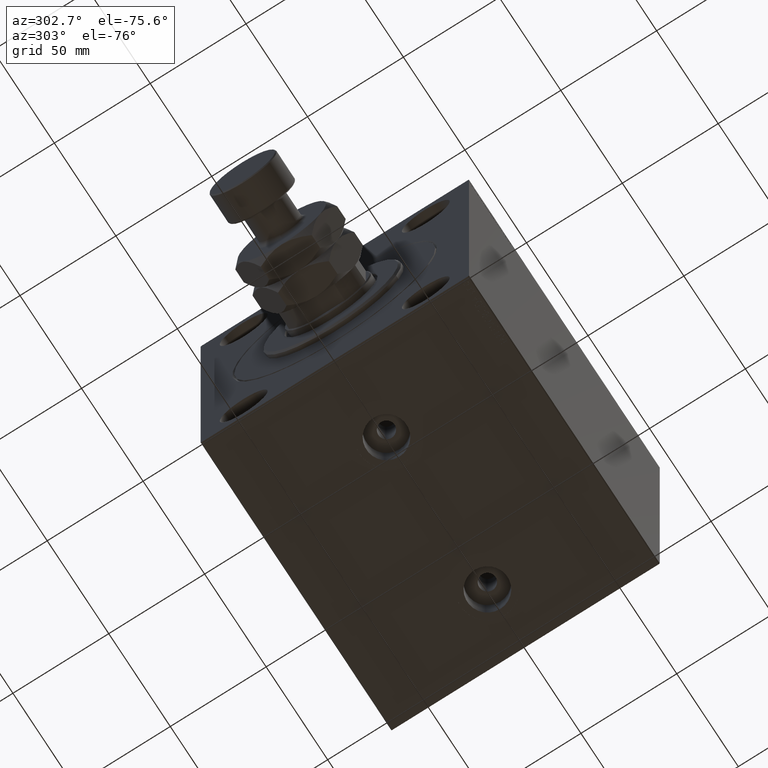
[diagram: clean part render]
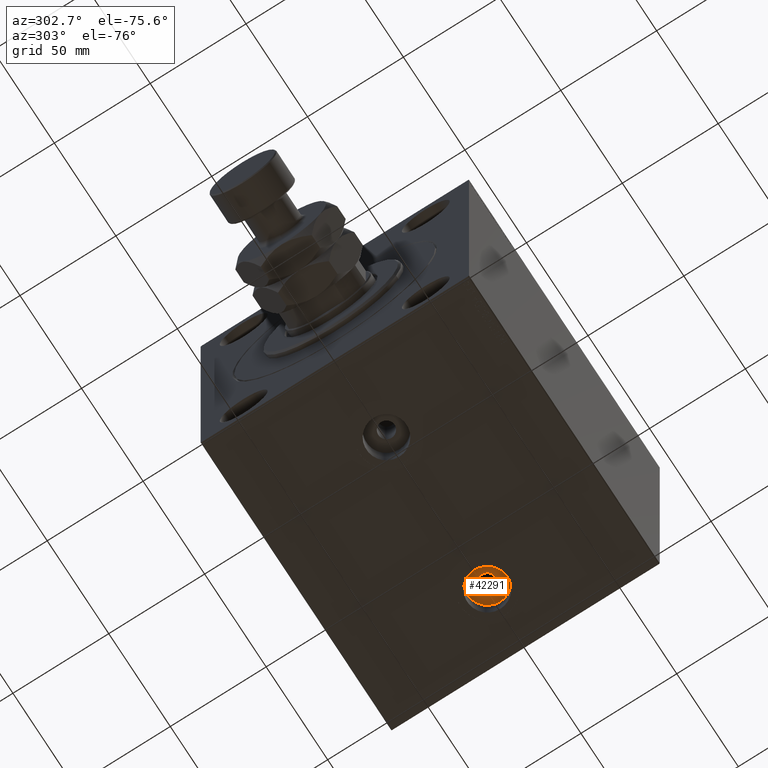
[diagram: same view with one face highlighted and labeled with its STEP entity id]
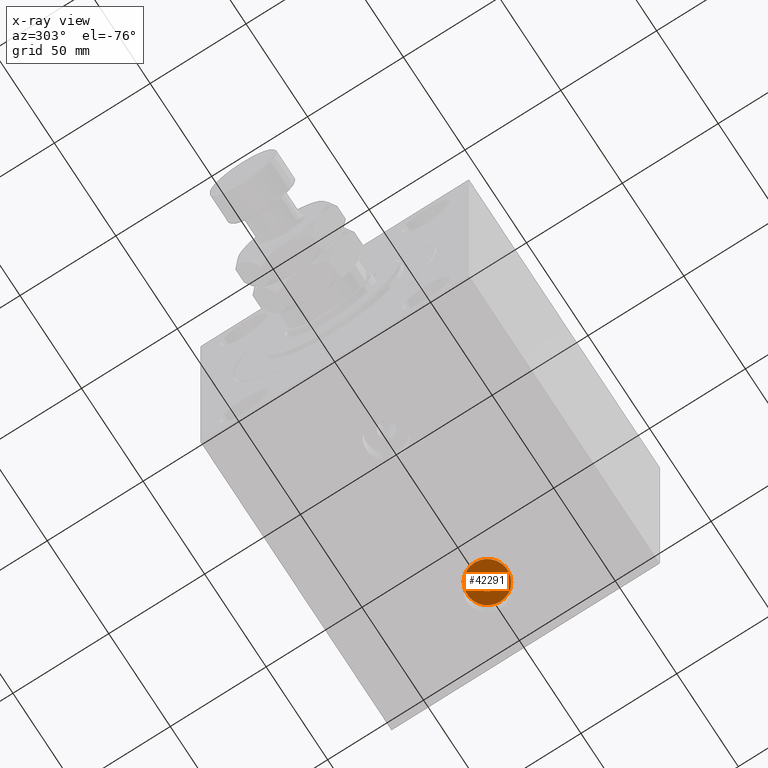
[diagram: x-ray of the same camera — body ghosted, the highlighted face saturated]
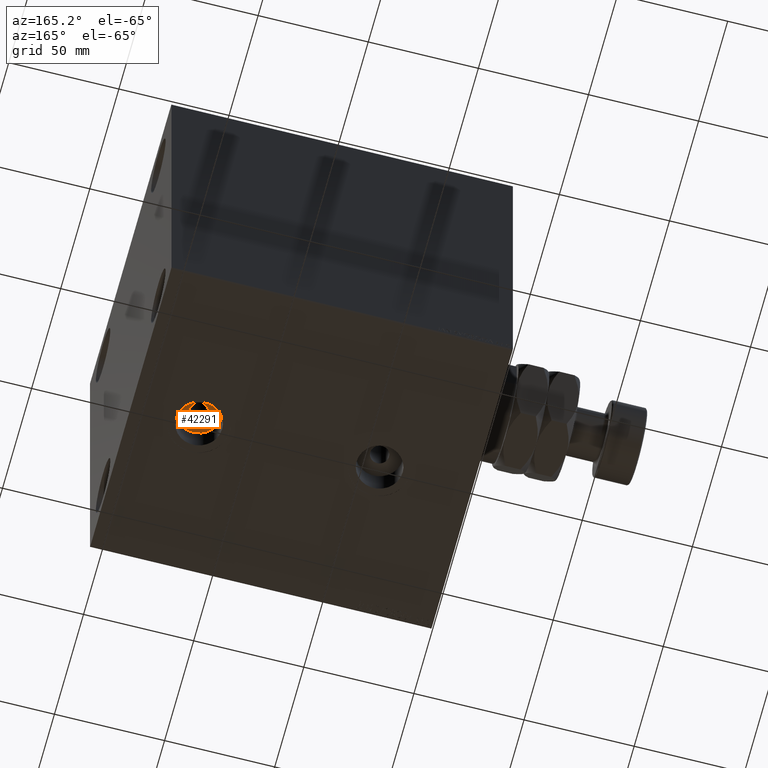
[diagram: same view with one face highlighted and labeled with its STEP entity id]
A machine part, auxiliary view. The second image highlights one B-rep face of the part: STEP entity #42291.
The next image is the same camera in x-ray: the body ghosted, the highlighted face saturated — about 0% of this face is hidden behind the body in this view.
A second angle (auxiliary view) of the same face is appended — the face is thin or edge-on in the first view.
In plain terms, the highlighted planar face has unit normal (0, 0, -1).
Its self-contained STEP definition (entity closure, byte-faithful):
#103 = ORIENTED_EDGE ( 'NONE', *, *, #25101, .F. ) ;
#887 = EDGE_CURVE ( 'NONE', #46851, #3155, #43690, .T. ) ;
#2224 = CARTESIAN_POINT ( 'NONE',  ( 0.000000000000000000, 0.000000000000000000, -72.00000000000004263 ) ) ;
#2394 = CARTESIAN_POINT ( 'NONE',  ( 134.4799999999999898, -3.018267527219322587E-15, -72.00000000000004263 ) ) ;
#3155 = VERTEX_POINT ( 'NONE', #7217 ) ;
#4359 = AXIS2_PLACEMENT_3D ( 'NONE', #2224, #20770, #35296 ) ;
#5632 = CARTESIAN_POINT ( 'NONE',  ( 113.5199999999999818, -4.301697372725748075E-15, -72.00000000000004263 ) ) ;
#6959 = VERTEX_POINT ( 'NONE', #2394 ) ;
#7217 = CARTESIAN_POINT ( 'NONE',  ( 128.2500000000000000, -3.781222483088124485E-15, -72.00000000000004263 ) ) ;
#7707 = DIRECTION ( 'NONE',  ( -1.000000000000000000, 0.000000000000000000, 0.000000000000000000 ) ) ;
#10546 = DIRECTION ( 'NONE',  ( -1.000000000000000000, 0.000000000000000000, 0.000000000000000000 ) ) ;
#11772 = ORIENTED_EDGE ( 'NONE', *, *, #32917, .T. ) ;
#14176 = EDGE_LOOP ( 'NONE', ( #41531, #103 ) ) ;
#14400 = CARTESIAN_POINT ( 'NONE',  ( 123.9999999999999858, -4.301697372725748075E-15, -72.00000000000004263 ) ) ;
#15861 = AXIS2_PLACEMENT_3D ( 'NONE', #14400, #43435, #20606 ) ;
#19040 = VERTEX_POINT ( 'NONE', #5632 ) ;
#20315 = FACE_BOUND ( 'NONE', #14176, .T. ) ;
#20547 = PLANE ( 'NONE',  #4359 ) ;
#20606 = DIRECTION ( 'NONE',  ( -1.000000000000000000, 0.000000000000000000, 0.000000000000000000 ) ) ;
#20770 = DIRECTION ( 'NONE',  ( 0.000000000000000000, 0.000000000000000000, -1.000000000000000000 ) ) ;
#22005 = CARTESIAN_POINT ( 'NONE',  ( 123.9999999999999858, -4.301697372725748075E-15, -72.00000000000004263 ) ) ;
#22513 = EDGE_LOOP ( 'NONE', ( #11772, #25399 ) ) ;
#23242 = AXIS2_PLACEMENT_3D ( 'NONE', #31473, #38403, #45991 ) ;
#23989 = CIRCLE ( 'NONE', #23242, 4.250000000000003553 ) ;
#25101 = EDGE_CURVE ( 'NONE', #3155, #46851, #23989, .T. ) ;
#25399 = ORIENTED_EDGE ( 'NONE', *, *, #37042, .T. ) ;
#27230 = FACE_OUTER_BOUND ( 'NONE', #22513, .T. ) ;
#27251 = CIRCLE ( 'NONE', #15861, 10.48000000000000398 ) ;
#29411 = AXIS2_PLACEMENT_3D ( 'NONE', #36024, #29588, #10546 ) ;
#29588 = DIRECTION ( 'NONE',  ( 0.000000000000000000, 0.000000000000000000, -1.000000000000000000 ) ) ;
#31473 = CARTESIAN_POINT ( 'NONE',  ( 123.9999999999999858, -4.301697372725748075E-15, -72.00000000000004263 ) ) ;
#32917 = EDGE_CURVE ( 'NONE', #19040, #6959, #44605, .T. ) ;
#35296 = DIRECTION ( 'NONE',  ( -1.000000000000000000, 0.000000000000000000, -0.000000000000000000 ) ) ;
#36024 = CARTESIAN_POINT ( 'NONE',  ( 123.9999999999999858, -4.301697372725748075E-15, -72.00000000000004263 ) ) ;
#36891 = CARTESIAN_POINT ( 'NONE',  ( 119.7499999999999858, -4.301697372725748075E-15, -72.00000000000004263 ) ) ;
#37042 = EDGE_CURVE ( 'NONE', #6959, #19040, #27251, .T. ) ;
#38403 = DIRECTION ( 'NONE',  ( 0.000000000000000000, 0.000000000000000000, -1.000000000000000000 ) ) ;
#41531 = ORIENTED_EDGE ( 'NONE', *, *, #887, .F. ) ;
#42291 = ADVANCED_FACE ( 'NONE', ( #20315, #27230 ), #20547, .T. ) ;
#43435 = DIRECTION ( 'NONE',  ( 0.000000000000000000, 0.000000000000000000, -1.000000000000000000 ) ) ;
#43690 = CIRCLE ( 'NONE', #45969, 4.250000000000003553 ) ;
#44361 = DIRECTION ( 'NONE',  ( 0.000000000000000000, 0.000000000000000000, -1.000000000000000000 ) ) ;
#44605 = CIRCLE ( 'NONE', #29411, 10.48000000000000398 ) ;
#45969 = AXIS2_PLACEMENT_3D ( 'NONE', #22005, #44361, #7707 ) ;
#45991 = DIRECTION ( 'NONE',  ( -1.000000000000000000, 0.000000000000000000, 0.000000000000000000 ) ) ;
#46851 = VERTEX_POINT ( 'NONE', #36891 ) ;